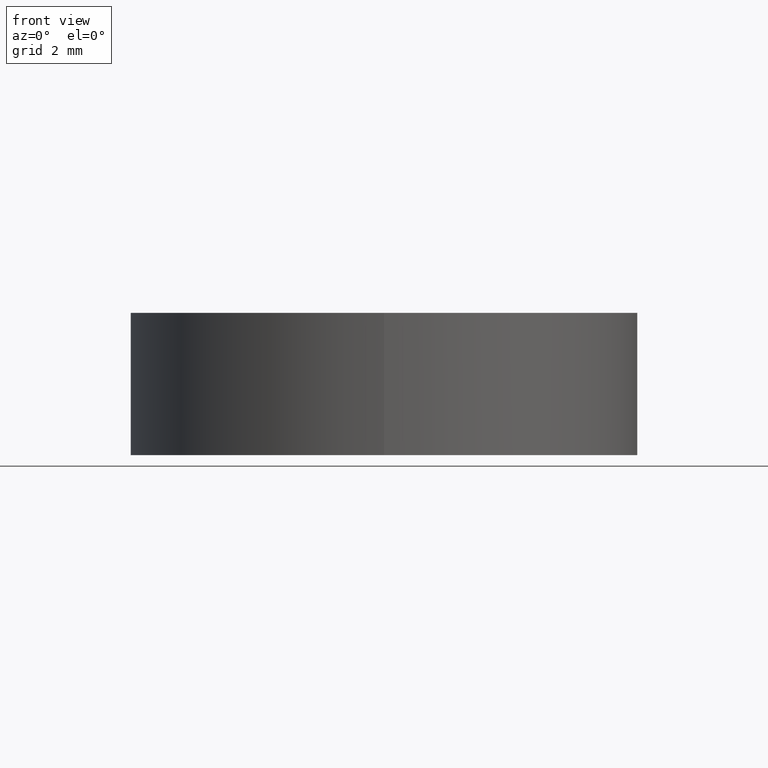
[diagram: clean part render]
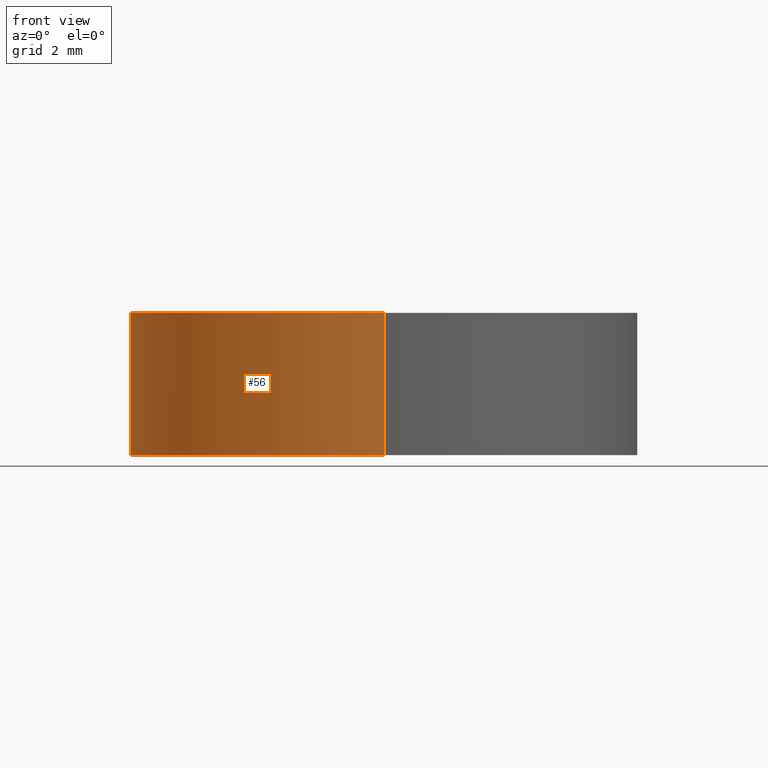
[diagram: same view with one face highlighted and labeled with its STEP entity id]
A machine part, front view. The second image highlights one B-rep face of the part: STEP entity #56.
In plain terms, the highlighted cylindrical surface (partial cylindrical patch) has radius 6.2484 mm, axis along (0, 0, -1).
Its self-contained STEP definition (entity closure, byte-faithful):
#26 = CARTESIAN_POINT ( 'NONE',  ( 7.652083059792319479E-16, -6.248400000000000176, 3.500000000000000000 ) ) ;
#33 = FACE_OUTER_BOUND ( 'NONE', #422, .T. ) ;
#56 = ADVANCED_FACE ( 'NONE', ( #33 ), #605, .T. ) ;
#82 = DIRECTION ( 'NONE',  ( 0.0000000000000000000, 1.224606353822375779E-16, -1.000000000000000000 ) ) ;
#98 = EDGE_CURVE ( 'NONE', #557, #478, #132, .T. ) ;
#102 = DIRECTION ( 'NONE',  ( 0.0000000000000000000, 1.000000000000000000, 1.224606353822376026E-16 ) ) ;
#120 = AXIS2_PLACEMENT_3D ( 'NONE', #458, #329, #285 ) ;
#125 = DIRECTION ( 'NONE',  ( 0.0000000000000000000, 1.224606353822375779E-16, -1.000000000000000000 ) ) ;
#130 = ORIENTED_EDGE ( 'NONE', *, *, #359, .F. ) ;
#132 = LINE ( 'NONE', #334, #245 ) ;
#133 = CIRCLE ( 'NONE', #237, 6.248400000000000176 ) ;
#141 = AXIS2_PLACEMENT_3D ( 'NONE', #503, #82, #337 ) ;
#155 = VERTEX_POINT ( 'NONE', #617 ) ;
#234 = ORIENTED_EDGE ( 'NONE', *, *, #472, .T. ) ;
#237 = AXIS2_PLACEMENT_3D ( 'NONE', #517, #608, #102 ) ;
#245 = VECTOR ( 'NONE', #282, 1000.000000000000000 ) ;
#282 = DIRECTION ( 'NONE',  ( 0.0000000000000000000, 1.224606353822375779E-16, -1.000000000000000000 ) ) ;
#285 = DIRECTION ( 'NONE',  ( 0.0000000000000000000, 1.000000000000000000, 1.388134143122084794E-16 ) ) ;
#293 = CARTESIAN_POINT ( 'NONE',  ( 0.0000000000000000000, 6.248400000000000176, 3.500000000000000000 ) ) ;
#329 = DIRECTION ( 'NONE',  ( 0.0000000000000000000, 1.388134143122084055E-16, -1.000000000000000000 ) ) ;
#331 = VECTOR ( 'NONE', #125, 1000.000000000000000 ) ;
#334 = CARTESIAN_POINT ( 'NONE',  ( 0.0000000000000000000, 6.248400000000000176, 7.651830341223738892E-16 ) ) ;
#337 = DIRECTION ( 'NONE',  ( 0.0000000000000000000, 1.000000000000000000, 1.224606353822376026E-16 ) ) ;
#359 = EDGE_CURVE ( 'NONE', #535, #155, #433, .T. ) ;
#411 = CIRCLE ( 'NONE', #120, 6.248400000000000176 ) ;
#422 = EDGE_LOOP ( 'NONE', ( #130, #234, #429, #591 ) ) ;
#429 = ORIENTED_EDGE ( 'NONE', *, *, #98, .T. ) ;
#433 = LINE ( 'NONE', #637, #331 ) ;
#458 = CARTESIAN_POINT ( 'NONE',  ( 0.0000000000000000000, -4.286122238378319911E-16, 3.500000000000000000 ) ) ;
#472 = EDGE_CURVE ( 'NONE', #535, #557, #411, .T. ) ;
#478 = VERTEX_POINT ( 'NONE', #504 ) ;
#503 = CARTESIAN_POINT ( 'NONE',  ( 0.0000000000000000000, 0.0000000000000000000, 0.0000000000000000000 ) ) ;
#504 = CARTESIAN_POINT ( 'NONE',  ( 0.0000000000000000000, 6.248400000000000176, 0.0000000000000000000 ) ) ;
#517 = CARTESIAN_POINT ( 'NONE',  ( 0.0000000000000000000, 9.370480054233440181E-32, -7.651830341223738892E-16 ) ) ;
#535 = VERTEX_POINT ( 'NONE', #26 ) ;
#557 = VERTEX_POINT ( 'NONE', #293 ) ;
#591 = ORIENTED_EDGE ( 'NONE', *, *, #630, .F. ) ;
#605 = CYLINDRICAL_SURFACE ( 'NONE', #141, 6.248400000000000176 ) ;
#608 = DIRECTION ( 'NONE',  ( 0.0000000000000000000, 1.224606353822375779E-16, -1.000000000000000000 ) ) ;
#617 = CARTESIAN_POINT ( 'NONE',  ( 7.652083059792319479E-16, -6.248400000000000176, -1.530366068244749948E-15 ) ) ;
#630 = EDGE_CURVE ( 'NONE', #155, #478, #133, .T. ) ;
#637 = CARTESIAN_POINT ( 'NONE',  ( 7.652083059792319479E-16, -6.248400000000000176, -7.651830341223738892E-16 ) ) ;